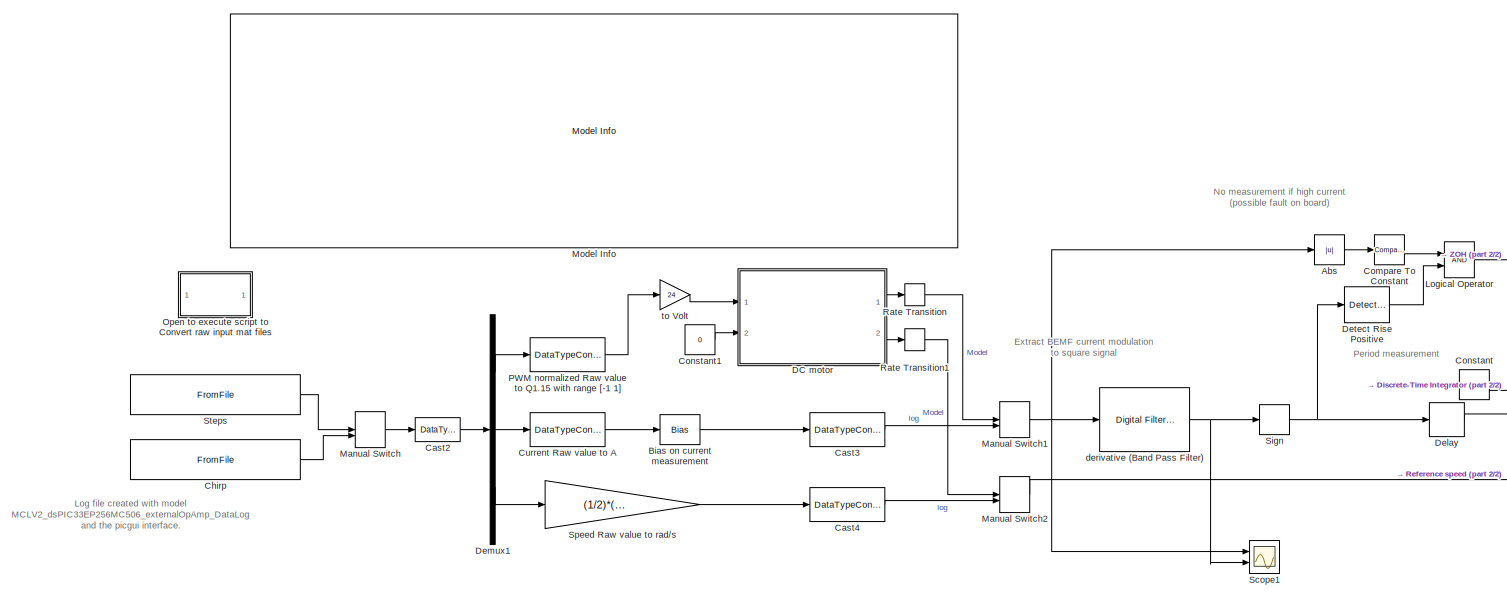
[diagram: root canvas - part 1/2, center side, full height]
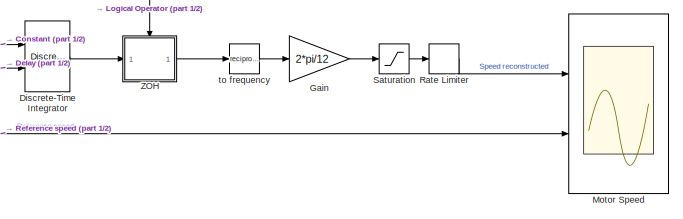
[diagram: root canvas - part 2/2, bottom right region]
MODEL slx_e60ac93b6584
KIND model
CONFIG AbsTol = auto
CONFIG EnableMultiTasking = off
CONFIG FixedStep = .00005
CONFIG MaxStep = auto
CONFIG MinStep = auto
CONFIG RelTol = 1e-3
CONFIG SampleTimeConstraint = Unconstrained
CONFIG Solver = FixedStepAuto
CONFIG SolverName = FixedStepAuto
CONFIG StartTime = 0.0
CONFIG StopTime = 60
BLOCK [Abs] Abs
  SaturateOnIntegerOverflow = off
BLOCK [Bias] Bias on current measurement
  Bias = 0.2
BLOCK [DataTypeConversion] Cast2
  OutDataTypeStr = int16
  RndMeth = Floor
  SaturateOnIntegerOverflow = off
BLOCK [DataTypeConversion] Cast3
  OutDataTypeStr = double
  RndMeth = Floor
  SaturateOnIntegerOverflow = off
BLOCK [DataTypeConversion] Cast4
  OutDataTypeStr = double
  RndMeth = Floor
  SaturateOnIntegerOverflow = off
BLOCK [FromFile] Chirp
  FileName = Sim_2018_11_07_at_18h40_54s.mat
  SampleTime = .00005
BLOCK [Reference] Compare To Constant  REF=simulink/Logic and Bit
Operations/Compare
To Constant
  Ports = [1, 1]
  SourceBlock = simulink/Logic and Bit\nOperations/Compare\nTo Constant
  SourceProductBaseCode = SL
  SourceProductName = Simulink
  SourceType = Compare To Constant
BLOCK [Constant] Constant
BLOCK [Constant] Constant1
  Value = 0
BLOCK [DataTypeConversion] Current Raw value to A
  ConvertRealWorld = Stored Integer (SI)
  OutDataTypeStr = fixdt(1,16,4.4/32768,0)
  RndMeth = Floor
  SaturateOnIntegerOverflow = off
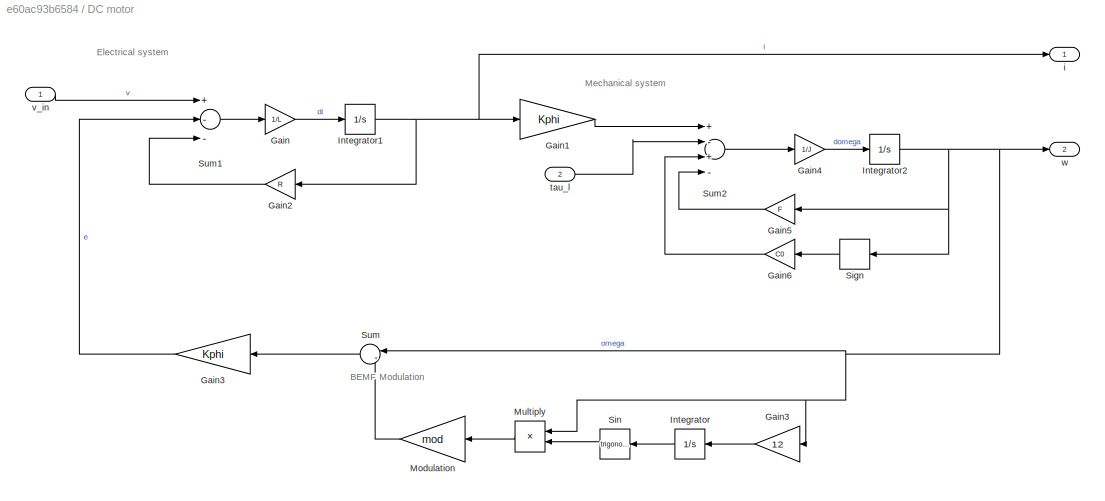
BLOCK [SubSystem] DC motor
  Ports = [2, 2]
  RequestExecContextInheritance = off
BLOCK [Gain] DC motor/Gain
  Gain = 1/L
  OutDataTypeStr = Inherit: Inherit via internal rule
  ParamDataTypeStr = Inherit: Inherit via internal rule
  SaturateOnIntegerOverflow = off
BLOCK [Gain] DC motor/Gain1
  Gain = Kphi
  OutDataTypeStr = Inherit: Inherit via internal rule
  ParamDataTypeStr = Inherit: Inherit via internal rule
  SaturateOnIntegerOverflow = off
BLOCK [Gain] DC motor/Gain2
  Gain = R
  OutDataTypeStr = Inherit: Inherit via internal rule
  ParamDataTypeStr = Inherit: Inherit via internal rule
  SaturateOnIntegerOverflow = off
BLOCK [Gain] DC motor/Gain3
  Gain = 12
  OutDataTypeStr = Inherit: Inherit via internal rule
  ParamDataTypeStr = Inherit: Inherit via internal rule
  SaturateOnIntegerOverflow = off
BLOCK [Gain] DC motor/Gain3  
  Gain = Kphi
  OutDataTypeStr = Inherit: Inherit via internal rule
  ParamDataTypeStr = Inherit: Inherit via internal rule
  SaturateOnIntegerOverflow = off
BLOCK [Gain] DC motor/Gain4
  Gain = 1/J
  OutDataTypeStr = Inherit: Inherit via internal rule
  ParamDataTypeStr = Inherit: Inherit via internal rule
  SaturateOnIntegerOverflow = off
BLOCK [Gain] DC motor/Gain5
  Gain = F
  OutDataTypeStr = Inherit: Inherit via internal rule
  ParamDataTypeStr = Inherit: Inherit via internal rule
  SaturateOnIntegerOverflow = off
BLOCK [Gain] DC motor/Gain6
  Gain = C0
  OutDataTypeStr = Inherit: Inherit via internal rule
  ParamDataTypeStr = Inherit: Inherit via internal rule
  SaturateOnIntegerOverflow = off
BLOCK [Integrator] DC motor/Integrator
  Ports = [1, 1]
  WrapState = on
BLOCK [Integrator] DC motor/Integrator1
  Ports = [1, 1]
BLOCK [Integrator] DC motor/Integrator2
  Ports = [1, 1]
BLOCK [Gain] DC motor/Modulation
  Gain = mod
  OutDataTypeStr = Inherit: Inherit via internal rule
  ParamDataTypeStr = Inherit: Inherit via internal rule
  SaturateOnIntegerOverflow = off
BLOCK [Product] DC motor/Multiply
  InputSameDT = off
  OutDataTypeStr = Inherit: Inherit via internal rule
  Ports = [2, 1]
  RndMeth = Floor
  SaturateOnIntegerOverflow = off
BLOCK [Signum] DC motor/Sign
BLOCK [Trigonometry] DC motor/Sin
  Ports = [1, 1]
BLOCK [Sum] DC motor/Sum
  IconShape = round
  InputSameDT = off
  Inputs = |++
  OutDataTypeStr = Inherit: Inherit via internal rule
  Ports = [2, 1]
  SaturateOnIntegerOverflow = off
BLOCK [Sum] DC motor/Sum1
  InputSameDT = off
  Inputs = +--
  OutDataTypeStr = Inherit: Inherit via internal rule
  Ports = [3, 1]
  SaturateOnIntegerOverflow = off
BLOCK [Sum] DC motor/Sum2
  InputSameDT = off
  Inputs = +-+-
  OutDataTypeStr = Inherit: Inherit via internal rule
  Ports = [4, 1]
  SaturateOnIntegerOverflow = off
BLOCK [Outport] DC motor/i
  IconDisplay = Port number
BLOCK [Inport] DC motor/tau_l
  IconDisplay = Port number
  Port = 2
BLOCK [Inport] DC motor/v_in
  IconDisplay = Port number
  SampleTime = 0
BLOCK [Outport] DC motor/w
  IconDisplay = Port number
  Port = 2
BLOCK [Delay] Delay
  DelayLength = 1
  InitialCondition = 0
  InputPortMap = u0
  Ports = [1, 1]
BLOCK [Demux] Demux1
  DisplayOption = bar
  Outputs = 3
  Ports = [1, 3]
BLOCK [Reference] Detect Rise Positive  REF=simulink/Logic and Bit
Operations/Detect Rise
Positive
  Ports = [1, 1]
  SourceBlock = simulink/Logic and Bit\nOperations/Detect Rise\nPositive
  SourceProductBaseCode = SL
  SourceProductName = Simulink
  SourceType = Detect Rise Positive
BLOCK [DiscreteIntegrator] Discrete-Time Integrator
  ExternalReset = rising
  ICPrevOutput = DiscIntNeverNeededParam
  ICPrevScaledInput = DiscIntNeverNeededParam
  InitialConditionSetting = Auto
  IntegratorMethod = Integration: Backward Euler
  Ports = [2, 1]
  SampleTime = -1
BLOCK [Gain] Gain
  Gain = 2*pi/12
  OutDataTypeStr = Inherit: Inherit via internal rule
  ParamDataTypeStr = Inherit: Inherit via internal rule
  SaturateOnIntegerOverflow = off
BLOCK [Logic] Logical Operator
  AllPortsSameDT = off
  OutDataTypeStr = boolean
  Ports = [2, 1]
BLOCK [ManualSwitch] Manual Switch
BLOCK [ManualSwitch] Manual Switch1
BLOCK [ManualSwitch] Manual Switch2
BLOCK [Reference] Model Info  REF=simulink/Model-Wide
Utilities/Model Info
  Ports = []
  SourceBlock = simulink/Model-Wide\nUtilities/Model Info
  SourceProductBaseCode = SL
  SourceProductName = Simulink
  SourceType = CMBlock
BLOCK [Scope] Motor Speed
  Floating = off
  NumInputPorts = 2
  Ports = [2]
  ScopeSpecificationString = Simulink.scopes.TimeScopeBlockCfg('CurrentConfiguration', extmgr.ConfigurationSet(extmgr.Configuration('Core','General UI',true),extmgr.Configuration('Core','Source UI',true),extmgr.Configuration('Sources','WiredSimulink',true,'DataLoggingVariableName','ScopeData1'),extmgr.Configuration('Visuals','Time Domain',true,'SerializedDisplays',{struct('MinYLimReal','-62.51398','MaxYLimReal','562.50155','Y...<+1619ch>
BLOCK [SubSystem] Open to execute script to Convert raw input mat files
  LoadFcn = sim2mat();
  OpenFcn = sim2mat();
  Ports = []
  RequestExecContextInheritance = off
BLOCK [DataTypeConversion] PWM normalized Raw value to Q1.15 with range [-1 1]
  ConvertRealWorld = Stored Integer (SI)
  OutDataTypeStr = fixdt(1,16,15)
  RndMeth = Floor
  SaturateOnIntegerOverflow = off
BLOCK [RateLimiter] Rate Limiter
  FallingSlewLimit = -1000
  RisingSlewLimit = 1000
  SampleTimeMode = inherited
BLOCK [RateTransition] Rate Transition
  Deterministic = off
BLOCK [RateTransition] Rate Transition1
  Deterministic = off
BLOCK [Saturate] Saturation
  InputPortMap = u0
  LowerLimit = -500
  Ports = [1, 1]
  UpperLimit = 500
BLOCK [Scope] Scope1
  Floating = off
  NumInputPorts = 2
  Ports = [2]
  ScopeSpecificationString = Simulink.scopes.TimeScopeBlockCfg('CurrentConfiguration', extmgr.ConfigurationSet(extmgr.Configuration('Core','General UI',true),extmgr.Configuration('Core','Source UI',true),extmgr.Configuration('Sources','WiredSimulink',true),extmgr.Configuration('Visuals','Time Domain',true,'SerializedDisplays',{struct('MinYLimReal','-16.82205','MaxYLimReal','12.11304','YLabelReal','','MinYLimMag','0.00000','Ma...<+2094ch>
BLOCK [Signum] Sign
BLOCK [Gain] Speed Raw value to rad//s
  Gain = (1/2)*(2*pi)/1000/.002
  LockScale = on
  OutDataTypeStr = fixdt(1,16,5)
  ParamDataTypeStr = Inherit: Inherit via internal rule
  SaturateOnIntegerOverflow = off
BLOCK [FromFile] Steps
  FileName = Sim_2018_10_28_at_23h48_37s.mat
  SampleTime = .00005
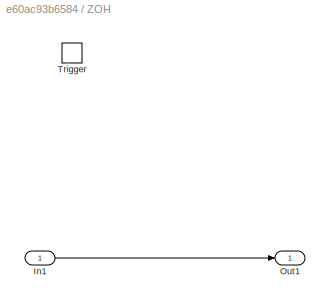
BLOCK [SubSystem] ZOH
  Ports = [1, 1, 0, 1]
  RequestExecContextInheritance = off
BLOCK [Inport] ZOH/In1
  IconDisplay = Port number
BLOCK [Outport] ZOH/Out1
  IconDisplay = Port number
BLOCK [TriggerPort] ZOH/Trigger
  PortDimensions = 1
  Ports = []
  StatesWhenEnabling = held
  VariantControl = Variant
BLOCK [Reference] derivative (Band Pass Filter)  REF=dsparch4/Digital
Filter Design
  Ports = [1, 1]
  SourceBlock = dsparch4/Digital\nFilter Design
  SourceProductBaseCode = DS
  SourceProductName = DSP System Toolbox
  SourceType = Digital Filter Design
  UserDataPersistent = on
BLOCK [Gain] to Volt
  Gain = 24
  OutDataTypeStr = double
  ParamDataTypeStr = Inherit: Inherit via internal rule
  SaturateOnIntegerOverflow = off
BLOCK [Math] to frequency
  Operator = reciprocal
  Ports = [1, 1]
ANNOTATION (root): Extract BEMF current modulation to square signal
ANNOTATION (root): Log file created with model MCLV2_dsPIC33EP256MC506_externalOpAmp_DataLog and the picgui interface.
ANNOTATION (root): No measurement if high current (possible fault on board)
ANNOTATION (root): Period measurement
ANNOTATION DC motor: BEMF Modulation
ANNOTATION DC motor: Electrical system
ANNOTATION DC motor: Mechanical system
LINE Abs:1 -> Compare To Constant:1
LINE Bias on current measurement:1 -> Cast3:1
LINE Cast2:1 -> Demux1:1
LINE Cast3:1 -> Manual Switch1:2
LINE Cast4:1 -> Manual Switch2:2
LINE Chirp:1 -> Manual Switch:2
LINE Compare To Constant:1 -> Logical Operator:1
LINE Constant1:1 -> DC motor:2
LINE Constant:1 -> Discrete-Time Integrator:1
LINE Current Raw value to A:1 -> Bias on current measurement:1
LINE DC motor/Gain1:1 -> DC motor/Sum2:1
LINE DC motor/Gain2:1 -> DC motor/Sum1:3
LINE DC motor/Gain3  :1 -> DC motor/Sum1:2
LINE DC motor/Gain3:1 -> DC motor/Integrator:1
LINE DC motor/Gain4:1 -> DC motor/Integrator2:1
LINE DC motor/Gain5:1 -> DC motor/Sum2:4
LINE DC motor/Gain6:1 -> DC motor/Sum2:3
LINE DC motor/Gain:1 -> DC motor/Integrator1:1
NET DC motor/Integrator1:1 -> DC motor/Gain1:1, DC motor/Gain2:1, DC motor/i:1
NET DC motor/Integrator2:1 -> DC motor/Gain3:1, DC motor/Gain5:1, DC motor/Multiply:1, DC motor/Sign:1, DC motor/Sum:1, DC motor/w:1
LINE DC motor/Integrator:1 -> DC motor/Sin:1
LINE DC motor/Modulation:1 -> DC motor/Sum:2
LINE DC motor/Multiply:1 -> DC motor/Modulation:1
LINE DC motor/Sign:1 -> DC motor/Gain6:1
LINE DC motor/Sin:1 -> DC motor/Multiply:2
LINE DC motor/Sum1:1 -> DC motor/Gain:1
LINE DC motor/Sum2:1 -> DC motor/Gain4:1
LINE DC motor/Sum:1 -> DC motor/Gain3  :1
LINE DC motor/tau_l:1 -> DC motor/Sum2:2
LINE DC motor/v_in:1 -> DC motor/Sum1:1
LINE DC motor:1 -> Rate Transition:1
LINE DC motor:2 -> Rate Transition1:1
LINE Delay:1 -> Discrete-Time Integrator:2
LINE Demux1:1 -> PWM normalized Raw value to Q1.15 with range [-1 1]:1
LINE Demux1:2 -> Current Raw value to A:1
LINE Demux1:3 -> Speed Raw value to rad//s:1
LINE Detect Rise Positive:1 -> Logical Operator:2
LINE Discrete-Time Integrator:1 -> ZOH:1
LINE Gain:1 -> Saturation:1
LINE Logical Operator:1 -> ZOH:trigger
NET Manual Switch1:1 -> Abs:1, Scope1:1, derivative (Band Pass Filter):1
LINE Manual Switch2:1 -> Motor Speed:2
LINE Manual Switch:1 -> Cast2:1
LINE PWM normalized Raw value to Q1.15 with range [-1 1]:1 -> to Volt:1
LINE Rate Limiter:1 -> Motor Speed:1
LINE Rate Transition1:1 -> Manual Switch2:1
LINE Rate Transition:1 -> Manual Switch1:1
LINE Saturation:1 -> Rate Limiter:1
NET Sign:1 -> Delay:1, Detect Rise Positive:1
LINE Speed Raw value to rad//s:1 -> Cast4:1
LINE Steps:1 -> Manual Switch:1
LINE ZOH/In1:1 -> ZOH/Out1:1
LINE ZOH:1 -> to frequency:1
NET derivative (Band Pass Filter):1 -> Scope1:2, Sign:1
LINE to Volt:1 -> DC motor:1
LINE to frequency:1 -> Gain:1
note: NET lines group one-source signal fan-out (src -> all destinations, sorted); 1:1 wires keep LINE
